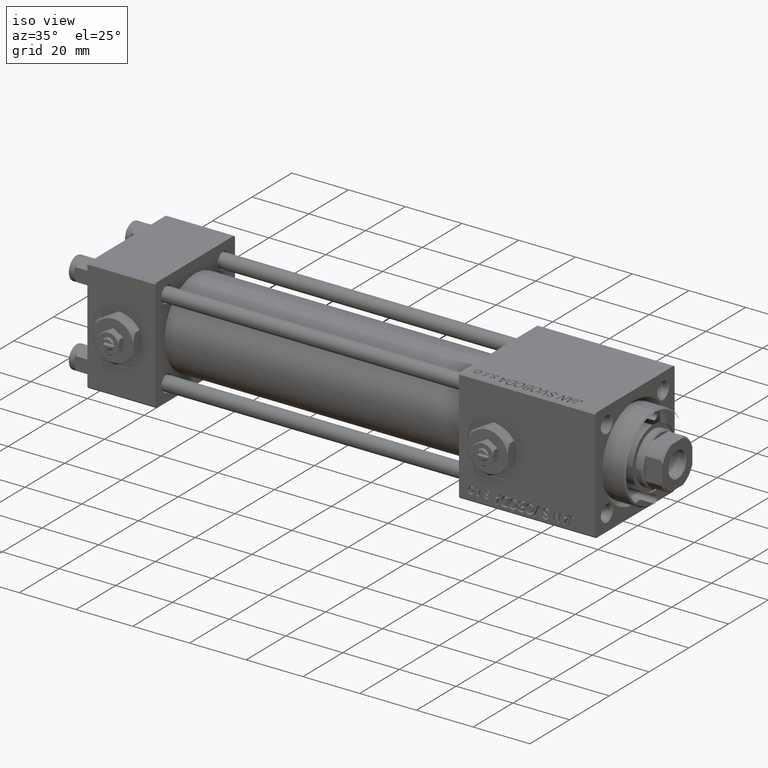
[diagram: clean part render]
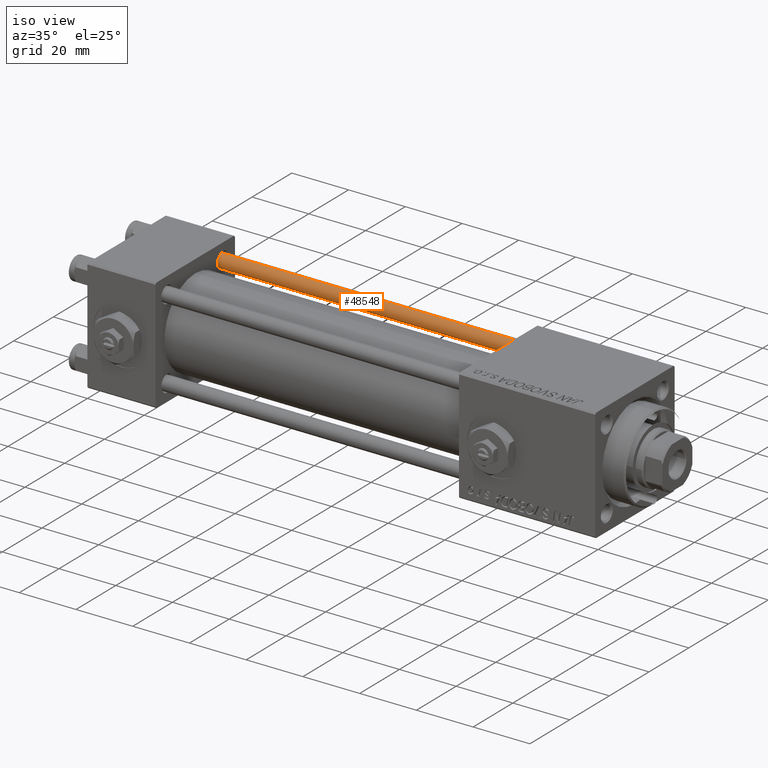
[diagram: same view with one face highlighted and labeled with its STEP entity id]
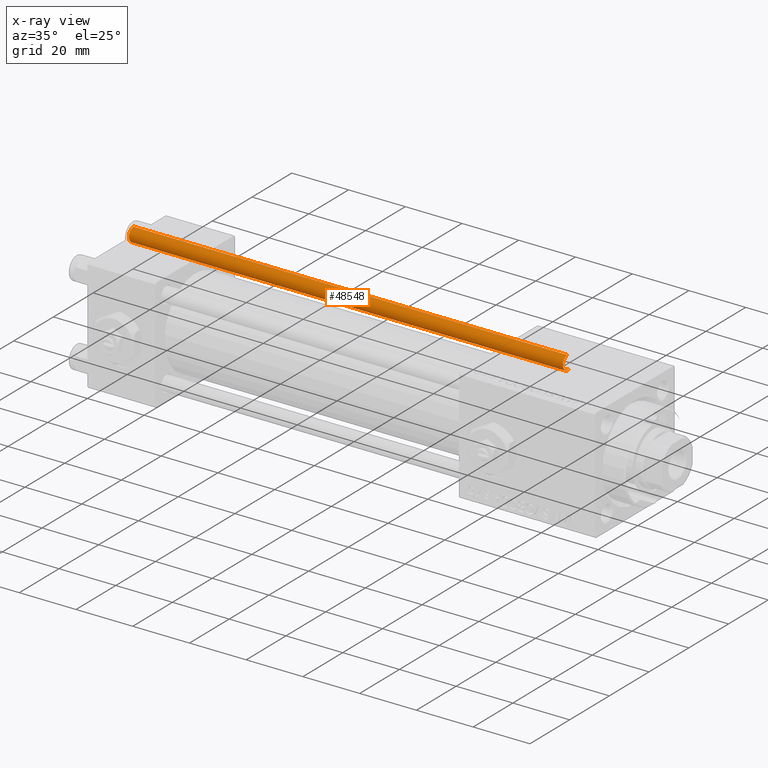
[diagram: x-ray of the same camera — body ghosted, the highlighted face saturated]
A machine part, iso view. The second image highlights one B-rep face of the part: STEP entity #48548.
The next image is the same camera in x-ray: the body ghosted, the highlighted face saturated — about 0% of this face is hidden behind the body in this view.
In plain terms, the highlighted cylindrical surface (edge-blend (fillet) strip) has radius 2.5 mm, axis along (-1, 0, 0).
Its self-contained STEP definition (entity closure, byte-faithful):
#17 = DIRECTION ( 'NONE',  ( -0.000000000000000000, -0.000000000000000000, -1.000000000000000000 ) ) ;
#1397 = EDGE_CURVE ( 'NONE', #17357, #28319, #20029, .T. ) ;
#2868 = ORIENTED_EDGE ( 'NONE', *, *, #3064, .T. ) ;
#3064 = EDGE_CURVE ( 'NONE', #17357, #41914, #39486, .T. ) ;
#4119 = EDGE_LOOP ( 'NONE', ( #27180, #2868, #19624, #48652 ) ) ;
#12100 = CARTESIAN_POINT ( 'NONE',  ( -2.500000000000000000, 0.000000000000000000, 154.0000000000000000 ) ) ;
#12159 = CARTESIAN_POINT ( 'NONE',  ( 0.000000000000000000, 0.000000000000000000, 154.0000000000000000 ) ) ;
#16716 = VECTOR ( 'NONE', #51994, 1000.000000000000000 ) ;
#17357 = VERTEX_POINT ( 'NONE', #46383 ) ;
#19624 = ORIENTED_EDGE ( 'NONE', *, *, #42432, .T. ) ;
#19762 = DIRECTION ( 'NONE',  ( -0.000000000000000000, -0.000000000000000000, -1.000000000000000000 ) ) ;
#20029 = LINE ( 'NONE', #48565, #16716 ) ;
#21790 = CIRCLE ( 'NONE', #51310, 2.500000000000000000 ) ;
#23476 = LINE ( 'NONE', #12100, #36938 ) ;
#24699 = CARTESIAN_POINT ( 'NONE',  ( -2.500000000000000000, 0.000000000000000000, 153.5000000000000284 ) ) ;
#25279 = DIRECTION ( 'NONE',  ( -0.000000000000000000, -0.000000000000000000, 1.000000000000000000 ) ) ;
#26803 = AXIS2_PLACEMENT_3D ( 'NONE', #47094, #42351, #42092 ) ;
#27180 = ORIENTED_EDGE ( 'NONE', *, *, #1397, .F. ) ;
#28283 = DIRECTION ( 'NONE',  ( -1.000000000000000000, 0.000000000000000000, 0.000000000000000000 ) ) ;
#28319 = VERTEX_POINT ( 'NONE', #38297 ) ;
#28529 = CYLINDRICAL_SURFACE ( 'NONE', #38552, 2.500000000000000000 ) ;
#29230 = DIRECTION ( 'NONE',  ( 1.000000000000000000, 0.000000000000000000, 0.000000000000000000 ) ) ;
#36938 = VECTOR ( 'NONE', #19762, 1000.000000000000000 ) ;
#38289 = CARTESIAN_POINT ( 'NONE',  ( -2.500000000000000000, 0.000000000000000000, 0.5000000000000281997 ) ) ;
#38297 = CARTESIAN_POINT ( 'NONE',  ( 2.500000000000000000, 3.061616997868383141E-16, 0.5000000000000281997 ) ) ;
#38552 = AXIS2_PLACEMENT_3D ( 'NONE', #12159, #17, #28283 ) ;
#39383 = EDGE_CURVE ( 'NONE', #48746, #28319, #21790, .T. ) ;
#39486 = CIRCLE ( 'NONE', #26803, 2.500000000000000000 ) ;
#41914 = VERTEX_POINT ( 'NONE', #24699 ) ;
#42092 = DIRECTION ( 'NONE',  ( 1.000000000000000000, 0.000000000000000000, 0.000000000000000000 ) ) ;
#42178 = CARTESIAN_POINT ( 'NONE',  ( 0.000000000000000000, 0.000000000000000000, 0.5000000000000281997 ) ) ;
#42351 = DIRECTION ( 'NONE',  ( 0.000000000000000000, 0.000000000000000000, -1.000000000000000000 ) ) ;
#42432 = EDGE_CURVE ( 'NONE', #41914, #48746, #23476, .T. ) ;
#46383 = CARTESIAN_POINT ( 'NONE',  ( 2.500000000000000000, 3.061616997868383141E-16, 153.5000000000000284 ) ) ;
#47094 = CARTESIAN_POINT ( 'NONE',  ( 0.000000000000000000, 0.000000000000000000, 153.5000000000000284 ) ) ;
#48361 = FACE_OUTER_BOUND ( 'NONE', #4119, .T. ) ;
#48548 = ADVANCED_FACE ( 'NONE', ( #48361 ), #28529, .T. ) ;
#48565 = CARTESIAN_POINT ( 'NONE',  ( 2.500000000000000000, 3.061616997868383141E-16, 154.0000000000000000 ) ) ;
#48652 = ORIENTED_EDGE ( 'NONE', *, *, #39383, .T. ) ;
#48746 = VERTEX_POINT ( 'NONE', #38289 ) ;
#51310 = AXIS2_PLACEMENT_3D ( 'NONE', #42178, #25279, #29230 ) ;
#51994 = DIRECTION ( 'NONE',  ( -0.000000000000000000, -0.000000000000000000, -1.000000000000000000 ) ) ;